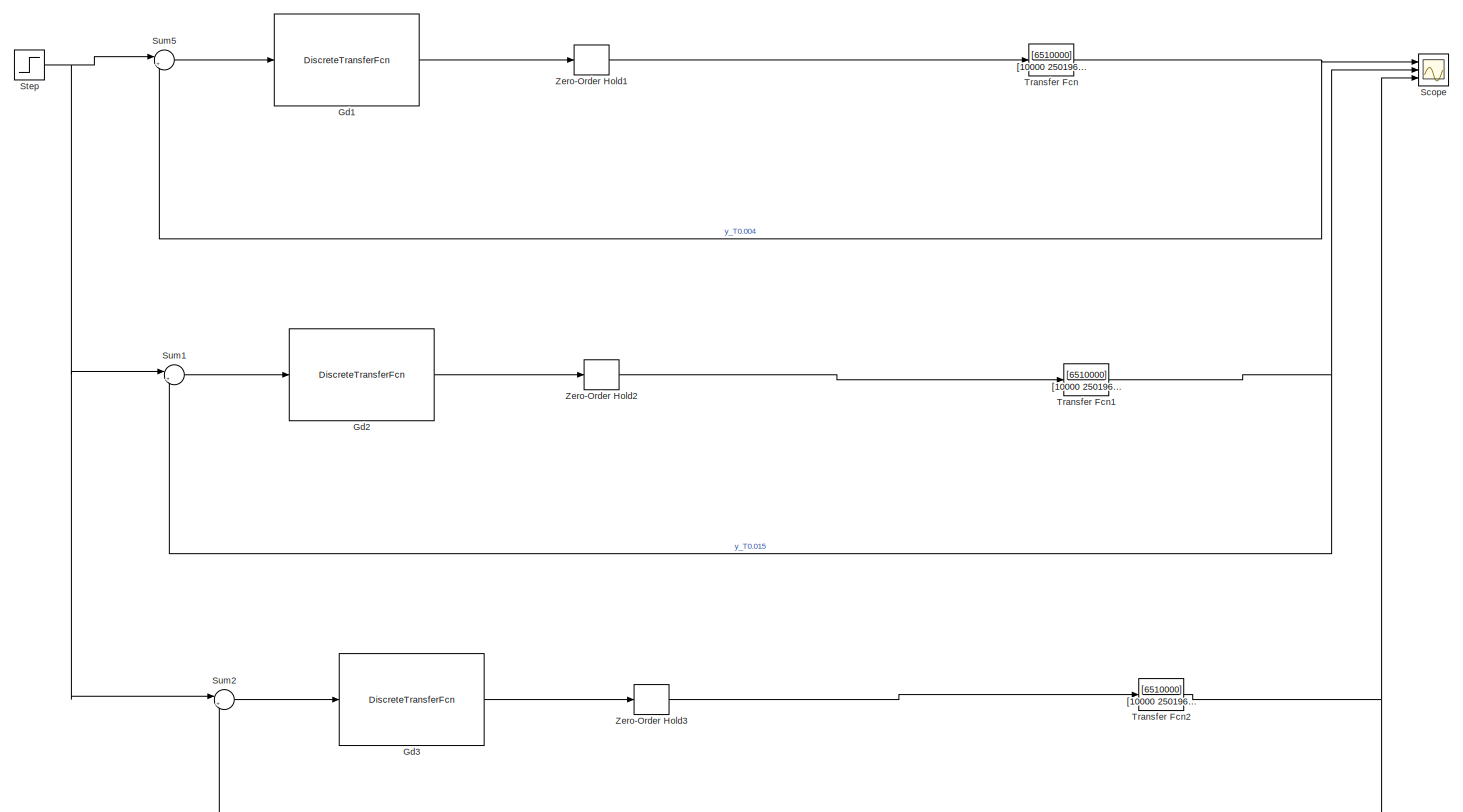
[diagram: root canvas - part 1/2, most of the canvas]
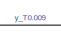
[diagram: root canvas - part 2/2, bottom center region]
MODEL slx_1e6e3b6e88e0
KIND model
CONFIG AbsTol = auto
CONFIG EnableMultiTasking = off
CONFIG FixedStep = auto
CONFIG MaxStep = auto
CONFIG MinStep = auto
CONFIG RelTol = 1e-3
CONFIG SampleTimeConstraint = Unconstrained
CONFIG Solver = VariableStepAuto
CONFIG SolverName = VariableStepAuto
CONFIG StartTime = 0.0
CONFIG StopTime = 5
BLOCK [DiscreteTransferFcn]  Gd1
  Denominator = [1 -1 0.0003355]
  InputPortMap = u0
  Numerator = [5775 -1.136e04 5587]
  Ports = [1, 1]
  SampleTime = 0.004
BLOCK [DiscreteTransferFcn]  Gd2
  Denominator = [1 -0.125 -0.875]
  InputPortMap = u0
  Numerator = [3019 -5676 2666]
  Ports = [1, 1]
  SampleTime = 0.015
BLOCK [DiscreteTransferFcn]  Gd3
  Denominator = [1 -0.2 -0.8]
  InputPortMap = u0
  Numerator = [4715 -9086 4377]
  Ports = [1, 1]
  SampleTime = 0.009
BLOCK [Scope] Scope
  NumInputPorts = 3
  Ports = [3]
  ScopeSpecificationString = Simulink.scopes.TimeScopeBlockCfg('CurrentConfiguration', extmgr.ConfigurationSet(extmgr.Configuration('Core','General UI',true),extmgr.Configuration('Core','Source UI',true),extmgr.Configuration('Sources','WiredSimulink',true),extmgr.Configuration('Visuals','Time Domain',true,'SerializedDisplays',{struct('MinYLimReal','-0.21984','MaxYLimReal','1.97855','YLabelReal','','MinYLimMag','0.00000','MaxY...<+1542ch>
BLOCK [Step] Step
  SampleTime = 0
BLOCK [Sum] Sum1
  IconShape = round
  InputSameDT = off
  Inputs = |+-
  OutDataTypeStr = Inherit: Inherit via internal rule
  Ports = [2, 1]
  SaturateOnIntegerOverflow = off
BLOCK [Sum] Sum2
  IconShape = round
  InputSameDT = off
  Inputs = |+-
  OutDataTypeStr = Inherit: Inherit via internal rule
  Ports = [2, 1]
  SaturateOnIntegerOverflow = off
BLOCK [Sum] Sum5
  IconShape = round
  InputSameDT = off
  Inputs = |+-
  OutDataTypeStr = Inherit: Inherit via internal rule
  Ports = [2, 1]
  SaturateOnIntegerOverflow = off
BLOCK [TransferFcn] Transfer Fcn
  Denominator = [10000 2501961 346150 -36025000]
  Numerator = [6510000]
BLOCK [TransferFcn] Transfer Fcn1
  Denominator = [10000 2501961 346150 -36025000]
  Numerator = [6510000]
BLOCK [TransferFcn] Transfer Fcn2
  Denominator = [10000 2501961 346150 -36025000]
  Numerator = [6510000]
BLOCK [ZeroOrderHold] Zero-Order Hold1
  SampleTime = 0.004
BLOCK [ZeroOrderHold] Zero-Order Hold2
  SampleTime = 0.015
BLOCK [ZeroOrderHold] Zero-Order Hold3
  SampleTime = 0.00915
LINE  Gd1:1 -> Zero-Order Hold1:1
LINE  Gd2:1 -> Zero-Order Hold2:1
LINE  Gd3:1 -> Zero-Order Hold3:1
NET Step:1 -> Sum1:1, Sum2:1, Sum5:1
LINE Sum1:1 ->  Gd2:1
LINE Sum2:1 ->  Gd3:1
LINE Sum5:1 ->  Gd1:1
NET Transfer Fcn1:1 -> Scope:2, Sum1:2
NET Transfer Fcn2:1 -> Scope:3, Sum2:2
NET Transfer Fcn:1 -> Scope:1, Sum5:2
LINE Zero-Order Hold1:1 -> Transfer Fcn:1
LINE Zero-Order Hold2:1 -> Transfer Fcn1:1
LINE Zero-Order Hold3:1 -> Transfer Fcn2:1
note: NET lines group one-source signal fan-out (src -> all destinations, sorted); 1:1 wires keep LINE
